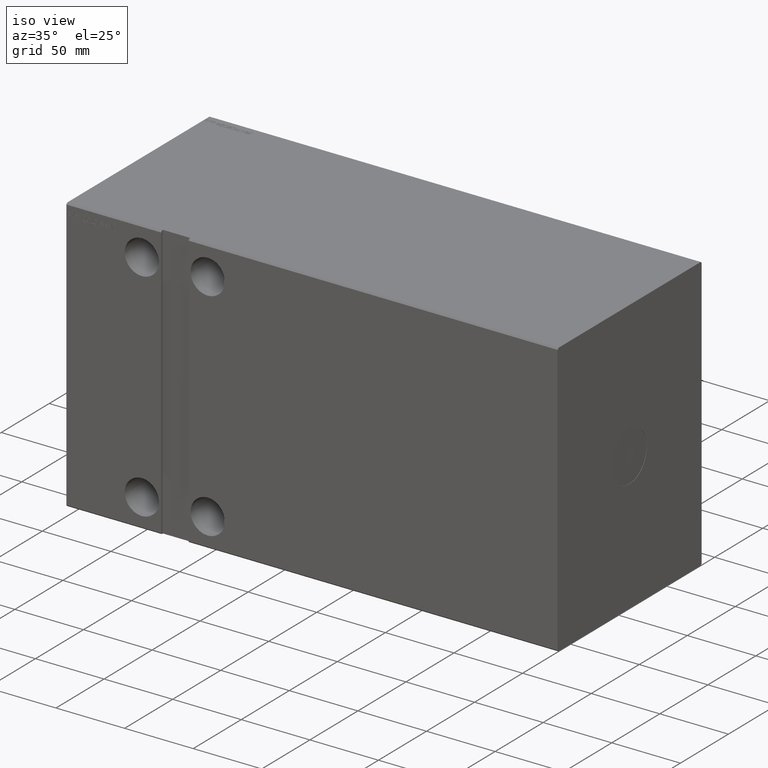
[diagram: clean part render]
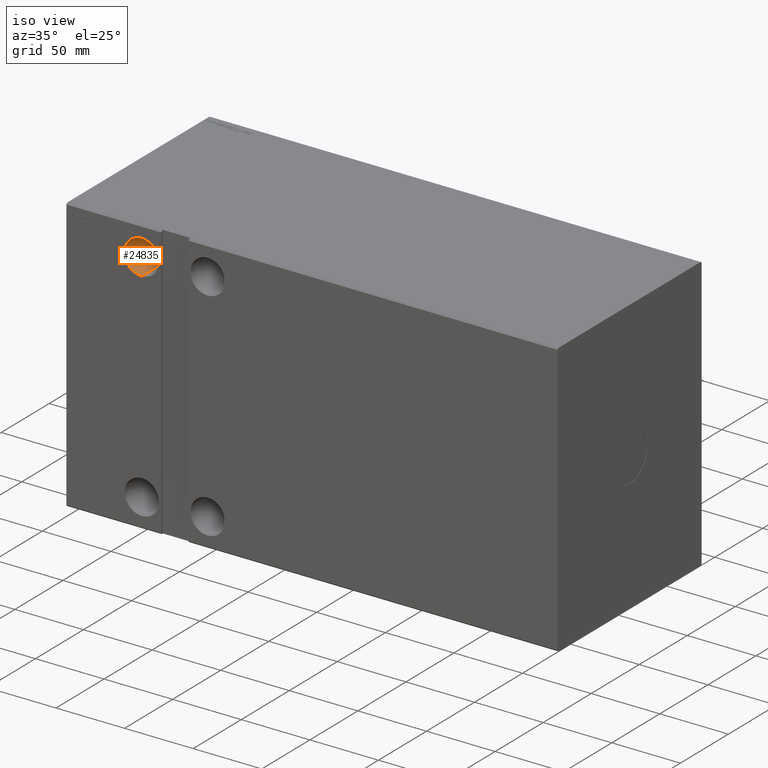
[diagram: same view with one face highlighted and labeled with its STEP entity id]
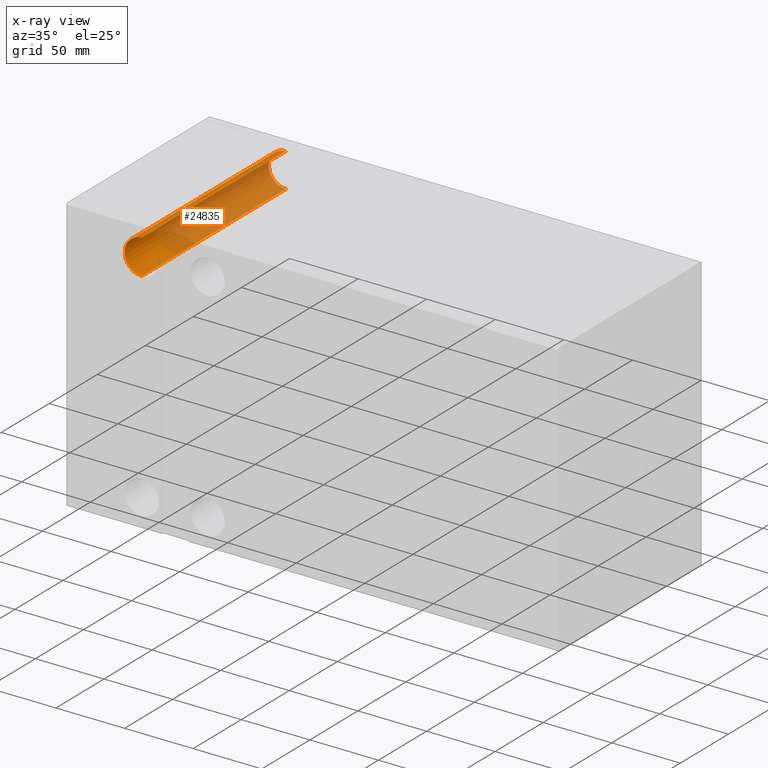
[diagram: x-ray of the same camera — body ghosted, the highlighted face saturated]
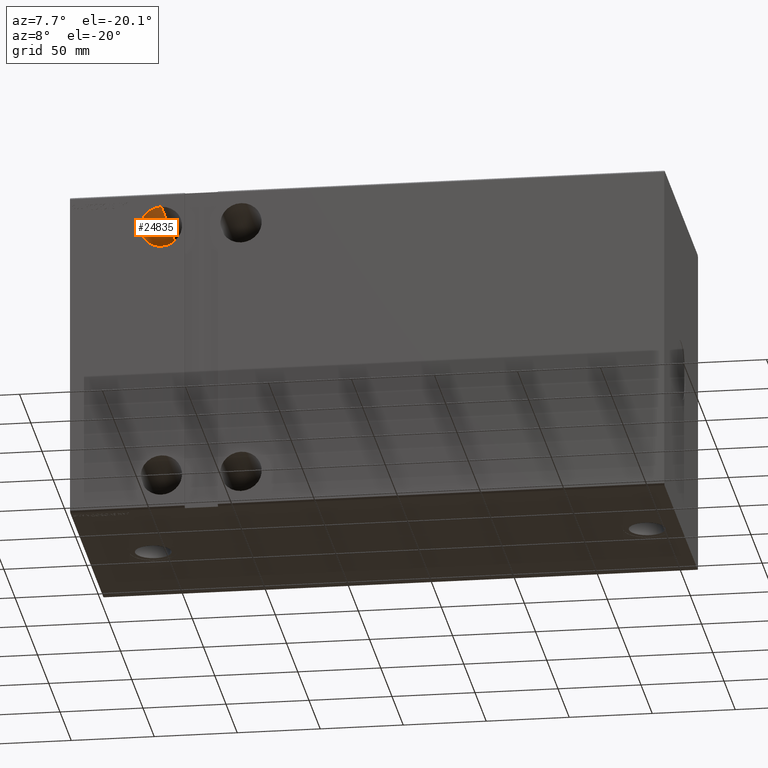
[diagram: same view with one face highlighted and labeled with its STEP entity id]
A machine part, iso view. The second image highlights one B-rep face of the part: STEP entity #24835.
The next image is the same camera in x-ray: the body ghosted, the highlighted face saturated — about 65% of this face is hidden behind the body in this view.
A second angle (auxiliary view) of the same face is appended — the face is thin or edge-on in the first view.
In plain terms, the highlighted cylindrical surface (edge-blend (fillet) strip) has radius 12.5 mm, axis along (-0, -1, -0).
Its self-contained STEP definition (entity closure, byte-faithful):
#675 = ORIENTED_EDGE ( 'NONE', *, *, #25890, .F. ) ;
#839 = CYLINDRICAL_SURFACE ( 'NONE', #12854, 12.49999999999999645 ) ;
#1057 = EDGE_CURVE ( 'NONE', #32600, #3845, #16242, .T. ) ;
#1424 = DIRECTION ( 'NONE',  ( -0.000000000000000000, 1.000000000000000000, 1.401796748264086693E-16 ) ) ;
#3845 = VERTEX_POINT ( 'NONE', #9231 ) ;
#6313 = DIRECTION ( 'NONE',  ( 0.000000000000000000, 0.000000000000000000, -1.000000000000000000 ) ) ;
#8432 = CARTESIAN_POINT ( 'NONE',  ( 54.99999999999997868, -74.99999999999998579, 91.49999999999998579 ) ) ;
#8748 = AXIS2_PLACEMENT_3D ( 'NONE', #12921, #22712, #6313 ) ;
#9231 = CARTESIAN_POINT ( 'NONE',  ( 54.99999999999997868, 75.00000000000004263, 66.50000000000000000 ) ) ;
#10442 = CARTESIAN_POINT ( 'NONE',  ( 54.99999999999997868, 75.00000000000004263, 79.00000000000000000 ) ) ;
#10819 = VECTOR ( 'NONE', #29335, 1000.000000000000000 ) ;
#11396 = CARTESIAN_POINT ( 'NONE',  ( 54.99999999999997868, 75.00000000000004263, 91.50000000000000000 ) ) ;
#12521 = VERTEX_POINT ( 'NONE', #28300 ) ;
#12854 = AXIS2_PLACEMENT_3D ( 'NONE', #10442, #17248, #19597 ) ;
#12921 = CARTESIAN_POINT ( 'NONE',  ( 54.99999999999997868, 75.00000000000004263, 79.00000000000000000 ) ) ;
#14827 = EDGE_CURVE ( 'NONE', #32600, #26709, #30380, .T. ) ;
#16242 = CIRCLE ( 'NONE', #8748, 12.49999999999999645 ) ;
#16822 = FACE_OUTER_BOUND ( 'NONE', #19712, .T. ) ;
#17202 = EDGE_CURVE ( 'NONE', #12521, #26709, #22313, .T. ) ;
#17248 = DIRECTION ( 'NONE',  ( -0.000000000000000000, -1.000000000000000000, -5.507058653894626469E-17 ) ) ;
#17544 = AXIS2_PLACEMENT_3D ( 'NONE', #27625, #1424, #27838 ) ;
#19223 = ORIENTED_EDGE ( 'NONE', *, *, #1057, .F. ) ;
#19597 = DIRECTION ( 'NONE',  ( 0.000000000000000000, 0.000000000000000000, -1.000000000000000000 ) ) ;
#19712 = EDGE_LOOP ( 'NONE', ( #19223, #38347, #28786, #675 ) ) ;
#19742 = CARTESIAN_POINT ( 'NONE',  ( 54.99999999999997868, 75.00000000000004263, 66.50000000000000000 ) ) ;
#22313 = CIRCLE ( 'NONE', #17544, 12.49999999999999645 ) ;
#22712 = DIRECTION ( 'NONE',  ( 0.000000000000000000, -1.000000000000000000, -5.507058653894625853E-17 ) ) ;
#24835 = ADVANCED_FACE ( 'NONE', ( #16822 ), #839, .F. ) ;
#25890 = EDGE_CURVE ( 'NONE', #3845, #12521, #26137, .T. ) ;
#26137 = LINE ( 'NONE', #19742, #10819 ) ;
#26709 = VERTEX_POINT ( 'NONE', #8432 ) ;
#27625 = CARTESIAN_POINT ( 'NONE',  ( 54.99999999999997868, -74.99999999999998579, 78.99999999999998579 ) ) ;
#27838 = DIRECTION ( 'NONE',  ( 0.000000000000000000, 0.000000000000000000, 1.000000000000000000 ) ) ;
#28300 = CARTESIAN_POINT ( 'NONE',  ( 54.99999999999997868, -74.99999999999998579, 66.49999999999998579 ) ) ;
#28786 = ORIENTED_EDGE ( 'NONE', *, *, #17202, .F. ) ;
#29335 = DIRECTION ( 'NONE',  ( -0.000000000000000000, -1.000000000000000000, -5.507058653894626469E-17 ) ) ;
#30380 = LINE ( 'NONE', #11396, #40621 ) ;
#32600 = VERTEX_POINT ( 'NONE', #40054 ) ;
#37394 = DIRECTION ( 'NONE',  ( -0.000000000000000000, -1.000000000000000000, -5.507058653894626469E-17 ) ) ;
#38347 = ORIENTED_EDGE ( 'NONE', *, *, #14827, .T. ) ;
#40054 = CARTESIAN_POINT ( 'NONE',  ( 54.99999999999997868, 75.00000000000004263, 91.50000000000000000 ) ) ;
#40621 = VECTOR ( 'NONE', #37394, 1000.000000000000000 ) ;